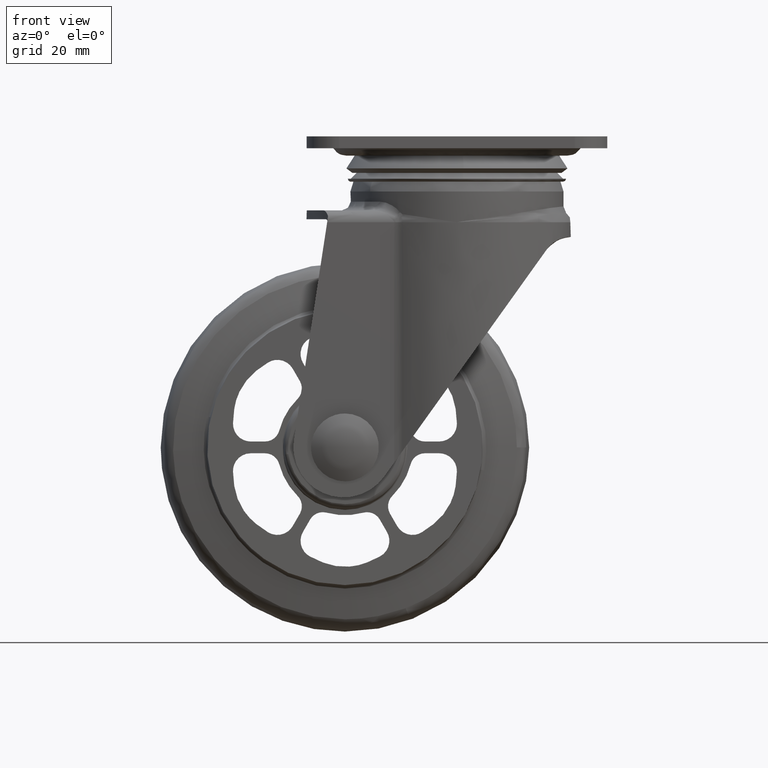
[diagram: clean part render]
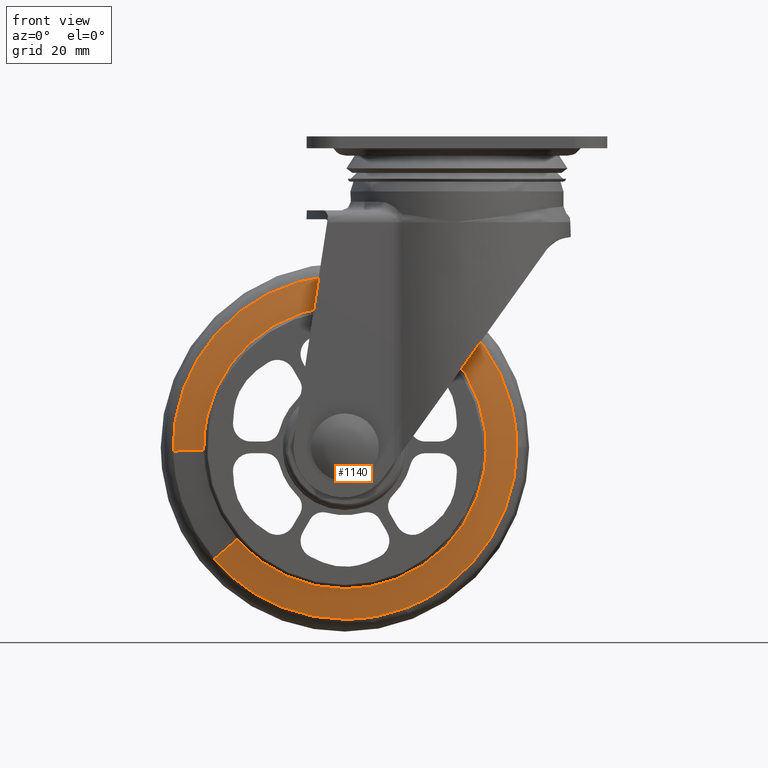
[diagram: same view with one face highlighted and labeled with its STEP entity id]
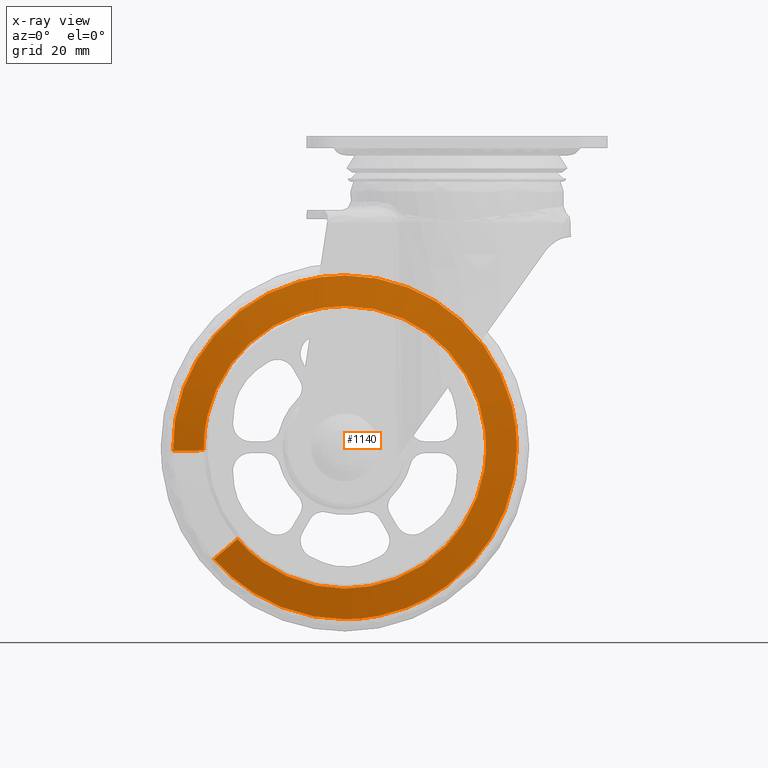
[diagram: x-ray of the same camera — body ghosted, the highlighted face saturated]
A machine part, front view. The second image highlights one B-rep face of the part: STEP entity #1140.
The next image is the same camera in x-ray: the body ghosted, the highlighted face saturated — about 0% of this face is hidden behind the body in this view.
In plain terms, the highlighted face is a freeform B-spline surface patch.
Its self-contained STEP definition (entity closure, byte-faithful):
#942=CARTESIAN_POINT('',(-47.652799904240780,-16.933381824030885,-0.990829674787479));
#943=CARTESIAN_POINT('',(-48.122127674043512,-16.933381824030882,21.580943126334667));
#944=CARTESIAN_POINT('',(-30.954707139842110,-16.933381824030889,36.243305423824971));
#945=CARTESIAN_POINT('',(5.288598283982864,-16.933381824030885,67.198012563667135));
#946=CARTESIAN_POINT('',(36.243305423825028,-16.933381824030889,30.954707139842160));
#947=CARTESIAN_POINT('',(67.198012563667191,-16.933381824030885,-5.288598283982807));
#948=CARTESIAN_POINT('',(30.954707139842220,-16.933381824030889,-36.243305423824971));
#949=CARTESIAN_POINT('',(-5.288598283982751,-16.933381824030885,-67.198012563667135));
#950=CARTESIAN_POINT('',(-36.243305423824907,-16.933381824030889,-30.954707139842160));
#951=CARTESIAN_POINT('',(-58.569415647765929,-14.881109457027698,-1.217815431105535));
#952=CARTESIAN_POINT('',(-59.146260099295588,-14.881109457027692,26.524847030543636));
#953=CARTESIAN_POINT('',(-38.046014344834653,-14.881109457027700,44.546159387961218));
#954=CARTESIAN_POINT('',(6.500145043126572,-14.881109457027701,82.592173732795914));
#955=CARTESIAN_POINT('',(44.546159387961282,-14.881109457027700,38.046014344834703));
#956=CARTESIAN_POINT('',(82.592173732795970,-14.881109457027701,-6.500145043126516));
#957=CARTESIAN_POINT('',(38.046014344834759,-14.881109457027700,-44.546159387961218));
#958=CARTESIAN_POINT('',(-6.500145043126460,-14.881109457027701,-82.592173732795914));
#959=CARTESIAN_POINT('',(-44.546159387961161,-14.881109457027700,-38.046014344834703));
#967=(BOUNDED_SURFACE()B_SPLINE_SURFACE(2,1,((#942,#951),(#943,#952),(#944,#953),(#945,#954),(#946,#955),(#947,#956),(#948,#957),(#949,#958),(#950,#959)),.UNSPECIFIED.,.F.,.F.,.U.)B_SPLINE_SURFACE_WITH_KNOTS((3,2,2,2,3),(2,2),(0.0,54.354697646894707,151.416657730635310,248.478617814375810,345.540577898116400),(0.0,11.110168481788071),.UNSPECIFIED.)GEOMETRIC_REPRESENTATION_ITEM()RATIONAL_B_SPLINE_SURFACE(((0.855662221768731,0.855662221768731),(0.835979797464467,0.835979797464467),(1.0,1.0),(0.707106781186548,0.707106781186548),(1.0,1.0),(0.707106781186548,0.707106781186548),(1.0,1.0),(0.707106781186548,0.707106781186548),(1.0,1.0)))REPRESENTATION_ITEM('')SURFACE());
#968=CARTESIAN_POINT('',(-47.912564715069678,-16.884547262504778,-0.996230882769881));
#969=VERTEX_POINT('',#968);
#970=CARTESIAN_POINT('',(-46.761716032002923,-16.884547264435330,10.485620930845270));
#971=VERTEX_POINT('',#970);
#972=CARTESIAN_POINT('',(-47.912564715069685,-16.884547262504775,-0.996230882769881));
#973=CARTESIAN_POINT('',(-47.922920753512749,-16.884547262504896,-0.498169268032003));
#974=CARTESIAN_POINT('',(-47.922920753512749,-16.884547262504899,0.0));
#975=CARTESIAN_POINT('',(-47.922920753512749,-16.884547262504899,5.307107869339818));
#976=CARTESIAN_POINT('',(-46.761716032002923,-16.884547264435330,10.485620930845272));
#984=(BOUNDED_CURVE()B_SPLINE_CURVE(2,(#972,#973,#974,#975,#976),.UNSPECIFIED.,.F.,.U.)B_SPLINE_CURVE_WITH_KNOTS((3,2,3),(0.746340492248190,0.750000000000000,0.787436176725056),.UNSPECIFIED.)CURVE()GEOMETRIC_REPRESENTATION_ITEM()RATIONAL_B_SPLINE_CURVE((0.991550757565706,0.995712619981198,1.0,0.956140790795717,0.925416950445776))REPRESENTATION_ITEM(''));
#985=EDGE_CURVE('',#969,#971,#984,.T.);
#986=ORIENTED_EDGE('',*,*,#985,.T.);
#987=CARTESIAN_POINT('',(5.684342E-014,-16.884547262504899,47.922920753512798));
#988=VERTEX_POINT('',#987);
#989=CARTESIAN_POINT('',(-46.761716032002923,-16.884547264435337,10.485620930845272));
#990=CARTESIAN_POINT('',(-38.366957082904008,-16.884547262504903,47.922920753512805));
#991=CARTESIAN_POINT('',(5.684342E-014,-16.884547262504899,47.922920753512798));
#999=(BOUNDED_CURVE()B_SPLINE_CURVE(2,(#989,#990,#991),.UNSPECIFIED.,.F.,.U.)B_SPLINE_CURVE_WITH_KNOTS((3,3),(0.787436176725056,1.0),.UNSPECIFIED.)CURVE()GEOMETRIC_REPRESENTATION_ITEM()RATIONAL_B_SPLINE_CURVE((0.925416950445774,0.750965990390832,1.0))REPRESENTATION_ITEM(''));
#1000=EDGE_CURVE('',#971,#988,#999,.T.);
#1001=ORIENTED_EDGE('',*,*,#1000,.T.);
#1002=CARTESIAN_POINT('',(47.284872303990497,-16.884547264187930,-7.794047978075398));
#1003=VERTEX_POINT('',#1002);
#1004=CARTESIAN_POINT('',(5.684342E-014,-16.884547262504899,47.922920753512798));
#1005=CARTESIAN_POINT('',(47.922920753512862,-16.884547262504896,47.922920753512805));
#1006=CARTESIAN_POINT('',(47.922920753512862,-16.884547262504899,0.0));
#1007=CARTESIAN_POINT('',(47.922920753512855,-16.884547262504899,-3.923140445315527));
#1008=CARTESIAN_POINT('',(47.284872303990504,-16.884547264187937,-7.794047978075398));
#1016=(BOUNDED_CURVE()B_SPLINE_CURVE(2,(#1004,#1005,#1006,#1007,#1008),.UNSPECIFIED.,.F.,.U.)B_SPLINE_CURVE_WITH_KNOTS((3,2,3),(0.0,0.250000000000000,0.277993891202774),.UNSPECIFIED.)CURVE()GEOMETRIC_REPRESENTATION_ITEM()RATIONAL_B_SPLINE_CURVE((1.0,0.707106781186548,1.0,0.967203116394024,0.941751131919693))REPRESENTATION_ITEM(''));
#1017=EDGE_CURVE('',#988,#1003,#1016,.T.);
#1018=ORIENTED_EDGE('',*,*,#1017,.T.);
#1019=CARTESIAN_POINT('',(5.684342E-014,-16.884547262504899,-47.922920753512798));
#1020=VERTEX_POINT('',#1019);
#1021=CARTESIAN_POINT('',(47.284872303990504,-16.884547264187937,-7.794047978075398));
#1022=CARTESIAN_POINT('',(40.670360218788751,-16.884547262504899,-47.922920753512805));
#1023=CARTESIAN_POINT('',(5.684342E-014,-16.884547262504899,-47.922920753512798));
#1031=(BOUNDED_CURVE()B_SPLINE_CURVE(2,(#1021,#1022,#1023),.UNSPECIFIED.,.F.,.U.)B_SPLINE_CURVE_WITH_KNOTS((3,3),(0.277993891202774,0.500000000000000),.UNSPECIFIED.)CURVE()GEOMETRIC_REPRESENTATION_ITEM()RATIONAL_B_SPLINE_CURVE((0.941751131919693,0.739903664792524,1.0))REPRESENTATION_ITEM(''));
#1032=EDGE_CURVE('',#1003,#1020,#1031,.T.);
#1033=ORIENTED_EDGE('',*,*,#1032,.T.);
#1034=CARTESIAN_POINT('',(-36.440874829919778,-16.884547262504739,-31.123447353686039));
#1035=VERTEX_POINT('',#1034);
#1036=CARTESIAN_POINT('',(5.684342E-014,-16.884547262504899,-47.922920753512798));
#1037=CARTESIAN_POINT('',(-22.092769073114155,-16.884547262504899,-47.922920753512813));
#1038=CARTESIAN_POINT('',(-36.440874829919778,-16.884547262504739,-31.123447353686036));
#1046=(BOUNDED_CURVE()B_SPLINE_CURVE(2,(#1036,#1037,#1038),.UNSPECIFIED.,.F.,.U.)B_SPLINE_CURVE_WITH_KNOTS((3,3),(0.500000000000000,0.636856838650339),.UNSPECIFIED.)CURVE()GEOMETRIC_REPRESENTATION_ITEM()RATIONAL_B_SPLINE_CURVE((1.0,0.839662240044276,0.854871031639090))REPRESENTATION_ITEM(''));
#1047=EDGE_CURVE('',#1020,#1035,#1046,.T.);
#1048=ORIENTED_EDGE('',*,*,#1047,.T.);
#1049=CARTESIAN_POINT('',(-44.343650271676523,-14.931164999999901,-37.873055220008872));
#1050=VERTEX_POINT('',#1049);
#1051=CARTESIAN_POINT('',(-36.440874829919778,-16.884547262504739,-31.123447353686039));
#1052=CARTESIAN_POINT('',(-44.343650271676523,-14.931164999999901,-37.873055220008872));
#1053=QUASI_UNIFORM_CURVE('',1,(#1051,#1052),.UNSPECIFIED.,.F.,.U.);
#1054=EDGE_CURVE('',#1035,#1050,#1053,.T.);
#1055=ORIENTED_EDGE('',*,*,#1054,.T.);
#1056=CARTESIAN_POINT('',(5.684342E-014,-14.931164999999959,-58.315758000000002));
#1057=VERTEX_POINT('',#1056);
#1058=CARTESIAN_POINT('',(5.684342E-014,-14.931164999999959,-58.315758000000002));
#1059=CARTESIAN_POINT('',(-26.883932668593921,-14.931164999999964,-58.315758000000017));
#1060=CARTESIAN_POINT('',(-44.343650271676523,-14.931164999999902,-37.873055220008872));
#1068=(BOUNDED_CURVE()B_SPLINE_CURVE(2,(#1058,#1059,#1060),.UNSPECIFIED.,.F.,.U.)B_SPLINE_CURVE_WITH_KNOTS((3,3),(0.500000000000000,0.636856838650534),.UNSPECIFIED.)CURVE()GEOMETRIC_REPRESENTATION_ITEM()RATIONAL_B_SPLINE_CURVE((1.0,0.839662240044047,0.854871031639133))REPRESENTATION_ITEM(''));
#1069=EDGE_CURVE('',#1057,#1050,#1068,.T.);
#1070=ORIENTED_EDGE('',*,*,#1069,.F.);
#1071=CARTESIAN_POINT('',(20.603071984805709,-14.931164880613141,-54.554936115347260));
#1072=VERTEX_POINT('',#1071);
#1073=CARTESIAN_POINT('',(20.603071984805705,-14.931164880613139,-54.554936115347260));
#1074=CARTESIAN_POINT('',(10.644780467396723,-14.931164999999966,-58.315758000000002));
#1075=CARTESIAN_POINT('',(5.684342E-014,-14.931164999999959,-58.315758000000002));
#1083=(BOUNDED_CURVE()B_SPLINE_CURVE(2,(#1073,#1074,#1075),.UNSPECIFIED.,.F.,.U.)B_SPLINE_CURVE_WITH_KNOTS((3,3),(0.439999999998655,0.500000000000000),.UNSPECIFIED.)CURVE()GEOMETRIC_REPRESENTATION_ITEM()RATIONAL_B_SPLINE_CURVE((0.893152553775214,0.929705627483196,1.0))REPRESENTATION_ITEM(''));
#1084=EDGE_CURVE('',#1072,#1057,#1083,.T.);
#1085=ORIENTED_EDGE('',*,*,#1084,.F.);
#1086=CARTESIAN_POINT('',(58.315757978879873,-14.931164882400999,6.522297E-016));
#1087=VERTEX_POINT('',#1086);
#1088=CARTESIAN_POINT('',(58.315757978879873,-14.931164882400997,6.522297E-016));
#1089=CARTESIAN_POINT('',(58.315757999999704,-14.931164999999961,-40.312463492857745));
#1090=CARTESIAN_POINT('',(20.603071984805705,-14.931164880613139,-54.554936115347260));
#1098=(BOUNDED_CURVE()B_SPLINE_CURVE(2,(#1088,#1089,#1090),.UNSPECIFIED.,.F.,.U.)B_SPLINE_CURVE_WITH_KNOTS((3,3),(0.250000000000002,0.439999999998655),.UNSPECIFIED.)CURVE()GEOMETRIC_REPRESENTATION_ITEM()RATIONAL_B_SPLINE_CURVE((0.999999999999996,0.777401153703353,0.893152553775214))REPRESENTATION_ITEM(''));
#1099=EDGE_CURVE('',#1087,#1072,#1098,.T.);
#1100=ORIENTED_EDGE('',*,*,#1099,.F.);
#1101=CARTESIAN_POINT('',(5.684342E-014,-14.931164999999959,58.315758000000002));
#1102=VERTEX_POINT('',#1101);
#1103=CARTESIAN_POINT('',(5.684342E-014,-14.931164999999959,58.315758000000002));
#1104=CARTESIAN_POINT('',(58.315758000000564,-14.931164999999957,58.315757999999995));
#1105=CARTESIAN_POINT('',(58.315757978879844,-14.931164882400990,6.522297E-016));
#1113=(BOUNDED_CURVE()B_SPLINE_CURVE(2,(#1103,#1104,#1105),.UNSPECIFIED.,.F.,.U.)B_SPLINE_CURVE_WITH_KNOTS((3,3),(0.0,0.250000000000002),.UNSPECIFIED.)CURVE()GEOMETRIC_REPRESENTATION_ITEM()RATIONAL_B_SPLINE_CURVE((1.0,0.707106781186546,1.000000000000004))REPRESENTATION_ITEM(''));
#1114=EDGE_CURVE('',#1102,#1087,#1113,.T.);
#1115=ORIENTED_EDGE('',*,*,#1114,.F.);
#1116=CARTESIAN_POINT('',(-58.303156092174653,-14.931164999992470,-1.212279180191709));
#1117=VERTEX_POINT('',#1116);
#1118=CARTESIAN_POINT('',(-58.303156092174646,-14.931164999992466,-1.212279180191710));
#1119=CARTESIAN_POINT('',(-58.315757999999953,-14.931164999999961,-0.606205090017453));
#1120=CARTESIAN_POINT('',(-58.315757999999953,-14.931164999999959,0.0));
#1121=CARTESIAN_POINT('',(-58.315757999999946,-14.931164999999963,58.315757999999988));
#1122=CARTESIAN_POINT('',(5.684342E-014,-14.931164999999959,58.315758000000002));
#1130=(BOUNDED_CURVE()B_SPLINE_CURVE(2,(#1118,#1119,#1120,#1121,#1122),.UNSPECIFIED.,.F.,.U.)B_SPLINE_CURVE_WITH_KNOTS((3,2,3),(0.746340492246723,0.750000000000000,1.0),.UNSPECIFIED.)CURVE()GEOMETRIC_REPRESENTATION_ITEM()RATIONAL_B_SPLINE_CURVE((0.991550757562370,0.995712619979480,1.0,0.707106781186547,1.0))REPRESENTATION_ITEM(''));
#1131=EDGE_CURVE('',#1117,#1102,#1130,.T.);
#1132=ORIENTED_EDGE('',*,*,#1131,.F.);
#1133=CARTESIAN_POINT('',(-47.912564715069678,-16.884547262504778,-0.996230882769881));
#1134=CARTESIAN_POINT('',(-58.303156092174653,-14.931164999992470,-1.212279180191709));
#1135=QUASI_UNIFORM_CURVE('',1,(#1133,#1134),.UNSPECIFIED.,.F.,.U.);
#1136=EDGE_CURVE('',#969,#1117,#1135,.T.);
#1137=ORIENTED_EDGE('',*,*,#1136,.F.);
#1138=EDGE_LOOP('',(#986,#1001,#1018,#1033,#1048,#1055,#1070,#1085,#1100,#1115,#1132,#1137));
#1139=FACE_OUTER_BOUND('',#1138,.T.);
#1140=ADVANCED_FACE('',(#1139),#967,.T.);